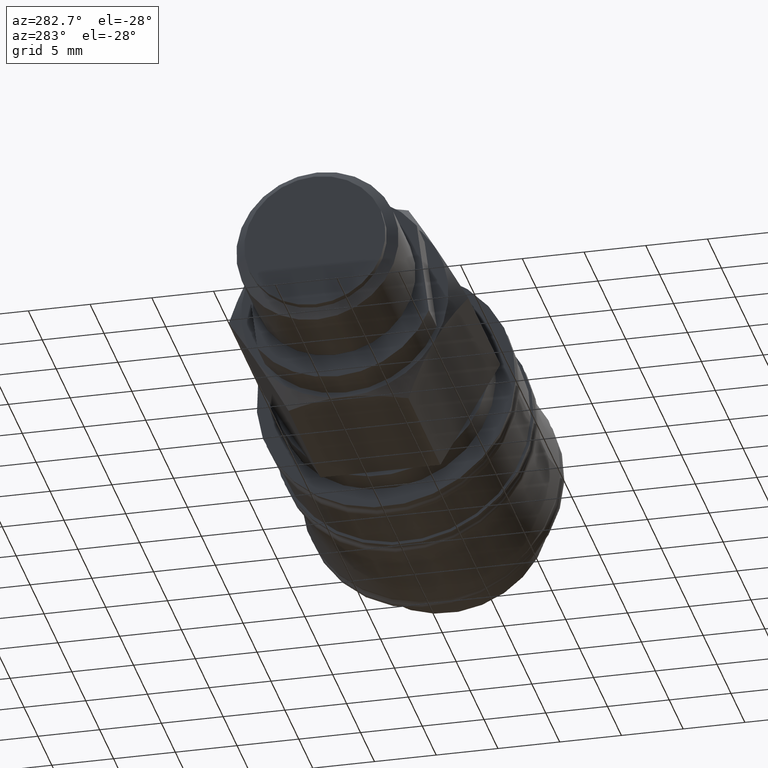
[diagram: clean part render]
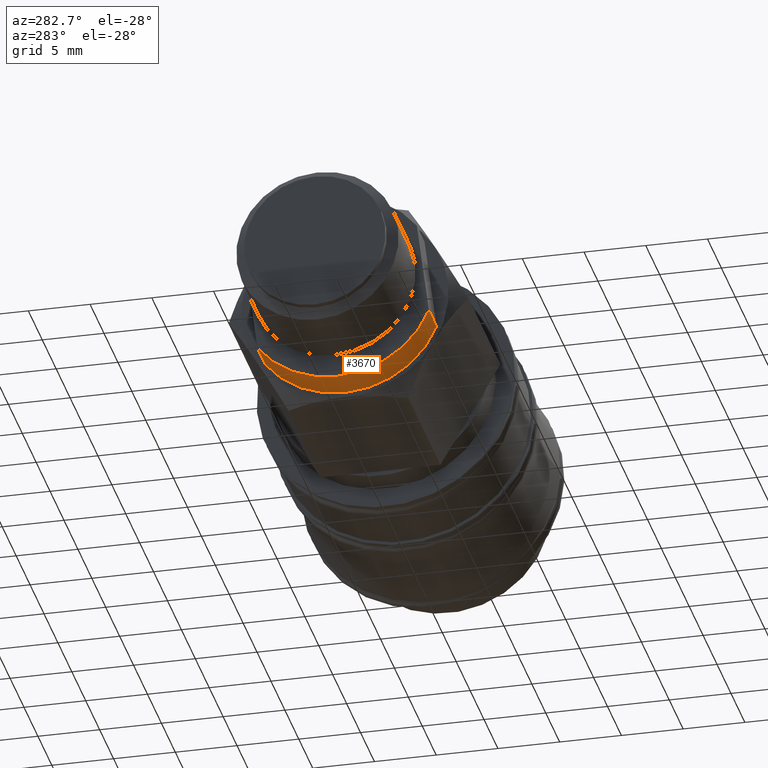
[diagram: same view with one face highlighted and labeled with its STEP entity id]
A machine part, auxiliary view. The second image highlights one B-rep face of the part: STEP entity #3670.
In plain terms, the highlighted cylindrical surface (partial cylindrical patch) has radius 8 mm, axis along (-1, 0, 0).
Its self-contained STEP definition (entity closure, byte-faithful):
#1399=CARTESIAN_POINT('',(8.881784E-015,-7.433182330278151,-2.957668075501494));
#1400=VERTEX_POINT('',#1399);
#1407=CARTESIAN_POINT('',(8.881784E-015,6.454659187966091,-4.726243198059632));
#1408=VERTEX_POINT('',#1407);
#1409=CARTESIAN_POINT('',(-5.551115E-016,0.0,0.0));
#1410=DIRECTION('',(1.0,0.0,0.0));
#1411=DIRECTION('',(0.0,0.991988679874589,-0.126326794468439));
#1412=AXIS2_PLACEMENT_3D('',#1409,#1410,#1411);
#1413=CIRCLE('',#1412,8.0);
#1414=EDGE_CURVE('',#1400,#1408,#1413,.T.);
#3639=CARTESIAN_POINT('',(-1.399999999999991,0.0,0.0));
#3640=DIRECTION('',(-1.0,0.0,0.0));
#3641=DIRECTION('',(0.0,0.991988679874589,-0.126326794468439));
#3642=AXIS2_PLACEMENT_3D('',#3639,#3640,#3641);
#3643=CYLINDRICAL_SURFACE('',#3642,8.0);
#3644=CARTESIAN_POINT('',(-2.799999999999991,-7.433182330278151,-2.957668075501494));
#3645=VERTEX_POINT('',#3644);
#3646=CARTESIAN_POINT('',(8.881784E-015,-7.433182330278151,-2.957668075501494));
#3647=DIRECTION('',(-1.0,0.0,0.0));
#3648=VECTOR('',#3647,2.8);
#3649=LINE('',#3646,#3648);
#3650=EDGE_CURVE('',#1400,#3645,#3649,.T.);
#3651=ORIENTED_EDGE('',*,*,#3650,.T.);
#3652=CARTESIAN_POINT('',(-2.799999999999991,6.454659187966091,-4.726243198059632));
#3653=VERTEX_POINT('',#3652);
#3654=CARTESIAN_POINT('',(-2.799999999999991,0.0,0.0));
#3655=DIRECTION('',(-1.0,0.0,0.0));
#3656=DIRECTION('',(0.0,0.991988679874589,-0.126326794468439));
#3657=AXIS2_PLACEMENT_3D('',#3654,#3655,#3656);
#3658=CIRCLE('',#3657,8.0);
#3659=EDGE_CURVE('',#3653,#3645,#3658,.T.);
#3660=ORIENTED_EDGE('',*,*,#3659,.F.);
#3661=CARTESIAN_POINT('',(-2.799999999999991,6.454659187966091,-4.726243198059632));
#3662=DIRECTION('',(1.0,0.0,0.0));
#3663=VECTOR('',#3662,2.8);
#3664=LINE('',#3661,#3663);
#3665=EDGE_CURVE('',#3653,#1408,#3664,.T.);
#3666=ORIENTED_EDGE('',*,*,#3665,.T.);
#3667=ORIENTED_EDGE('',*,*,#1414,.F.);
#3668=EDGE_LOOP('',(#3651,#3660,#3666,#3667));
#3669=FACE_OUTER_BOUND('',#3668,.T.);
#3670=ADVANCED_FACE('',(#3669),#3643,.T.);